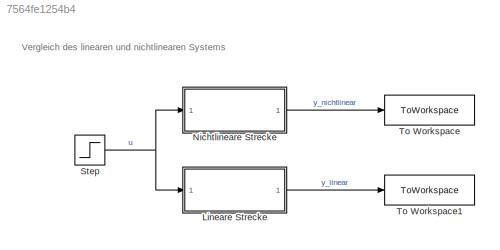
MODEL slx_7564fe1254b4
KIND model
CONFIG AbsTol = auto
CONFIG EnableMultiTasking = off
CONFIG FixedStep = 1/1e4
CONFIG MaxStep = auto
CONFIG MinStep = auto
CONFIG RelTol = 1e-3
CONFIG SampleTimeConstraint = Unconstrained
CONFIG SolverName = FixedStepAuto
CONFIG StartTime = 0.0
CONFIG StopTime = 30
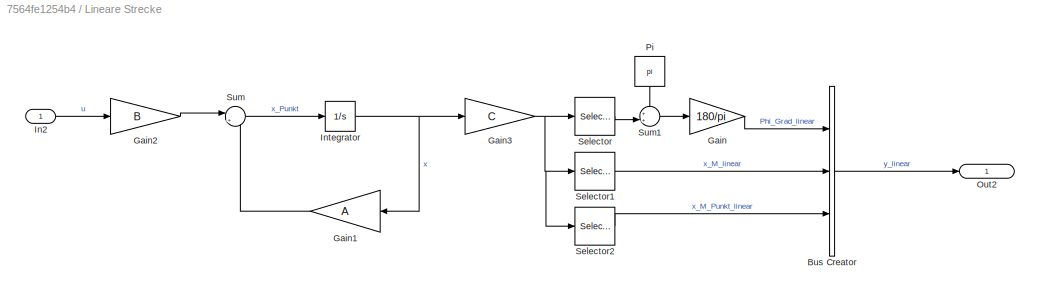
BLOCK [SubSystem] Lineare Strecke
  Ports = [1, 1]
  RequestExecContextInheritance = off
BLOCK [BusCreator] Lineare Strecke/Bus Creator
  DisplayOption = bar
  InheritFromInputs = on
  Inputs = 3
  Ports = [3, 1]
BLOCK [Gain] Lineare Strecke/Gain
  Gain = 180/pi
BLOCK [Gain] Lineare Strecke/Gain1
  Gain = A
  Multiplication = Matrix(K*u) (u vector)
  NameLocation = top
BLOCK [Gain] Lineare Strecke/Gain2
  Gain = B
  Multiplication = Matrix(K*u) (u vector)
BLOCK [Gain] Lineare Strecke/Gain3
  Gain = C
  Multiplication = Matrix(K*u) (u vector)
BLOCK [Inport] Lineare Strecke/In2
  IconDisplay = Signal name
BLOCK [Integrator] Lineare Strecke/Integrator
  Ports = [1, 1]
BLOCK [Outport] Lineare Strecke/Out2
  IconDisplay = Signal name
BLOCK [Constant] Lineare Strecke/Pi
  NameLocation = left
  OutDataTypeStr = Inherit: Inherit via back propagation
  Value = pi
BLOCK [Selector] Lineare Strecke/Selector
  IndexOptions = Index vector (dialog)
  Indices = 1
  InputPortWidth = 3
  OutputSizes = 1
  Ports = [1, 1]
BLOCK [Selector] Lineare Strecke/Selector1
  IndexOptions = Index vector (dialog)
  Indices = 2
  InputPortWidth = 3
  OutputSizes = 1
  Ports = [1, 1]
BLOCK [Selector] Lineare Strecke/Selector2
  IndexOptions = Index vector (dialog)
  Indices = 3
  InputPortWidth = 3
  OutputSizes = 1
  Ports = [1, 1]
BLOCK [Sum] Lineare Strecke/Sum
  Inputs = |++
  Ports = [2, 1]
BLOCK [Sum] Lineare Strecke/Sum1
  Inputs = ++|
  Ports = [2, 1]
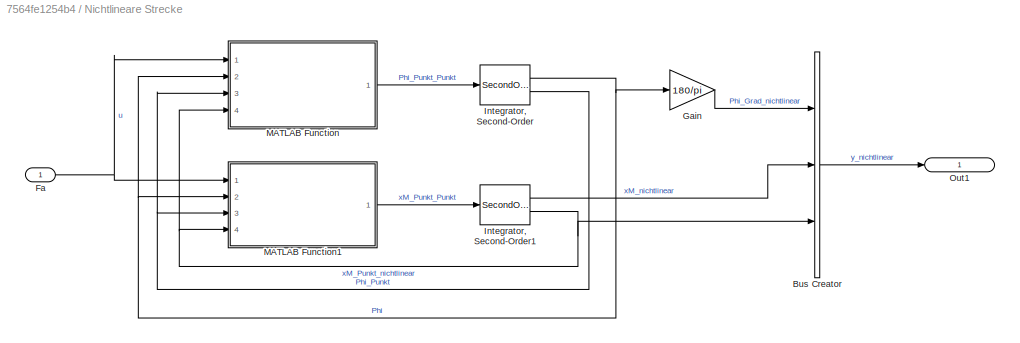
BLOCK [SubSystem] Nichtlineare Strecke
  Ports = [1, 1]
  RequestExecContextInheritance = off
BLOCK [BusCreator] Nichtlineare Strecke/Bus Creator
  DisplayOption = bar
  InheritFromInputs = on
  Inputs = 3
  Ports = [3, 1]
BLOCK [Inport] Nichtlineare Strecke/Fa
  IconDisplay = Signal name
BLOCK [Gain] Nichtlineare Strecke/Gain
  Gain = 180/pi
BLOCK [SecondOrderIntegrator] Nichtlineare Strecke/Integrator, Second-Order
  ICDXDT = x_Ruhe(2, 1)
  ICX = x_Ruhe(1, 1)
  Ports = [1, 2]
BLOCK [SecondOrderIntegrator] Nichtlineare Strecke/Integrator, Second-Order1
  ICDXDT = x_Ruhe(4, 1)
  ICX = x_Ruhe(3, 1)
  Ports = [1, 2]
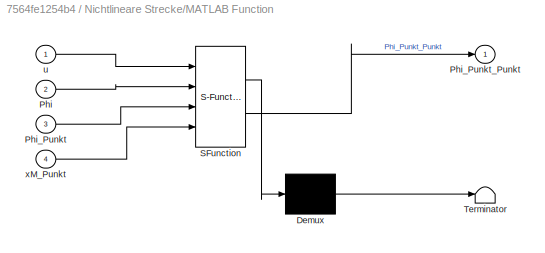
BLOCK [SubSystem] Nichtlineare Strecke/MATLAB Function
  ErrorFcn = Stateflow.Translate.translate
  PermitHierarchicalResolution = ExplicitOnly
  Ports = [4, 1]
  RequestExecContextInheritance = off
  SFBlockType = MATLAB Function
  TreatAsAtomicUnit = on
BLOCK [Demux] Nichtlineare Strecke/MATLAB Function/ Demux 
  Outputs = 1
  Ports = [1, 1]
BLOCK [S-Function] Nichtlineare Strecke/MATLAB Function/ SFunction 
  EnableBusSupport = on
  FunctionName = sf_sfun
  PortCounts = [4 2]
  Ports = [4, 2]
  SFcnIsStateOwnerBlock = off
  SFunctionDeploymentMode = off
  Tag = Stateflow S-Function 2
BLOCK [Terminator] Nichtlineare Strecke/MATLAB Function/ Terminator 
BLOCK [Inport] Nichtlineare Strecke/MATLAB Function/Phi
  Port = 2
BLOCK [Inport] Nichtlineare Strecke/MATLAB Function/Phi_Punkt
  Port = 3
BLOCK [Outport] Nichtlineare Strecke/MATLAB Function/Phi_Punkt_Punkt
BLOCK [Inport] Nichtlineare Strecke/MATLAB Function/u
BLOCK [Inport] Nichtlineare Strecke/MATLAB Function/xM_Punkt
  Port = 4
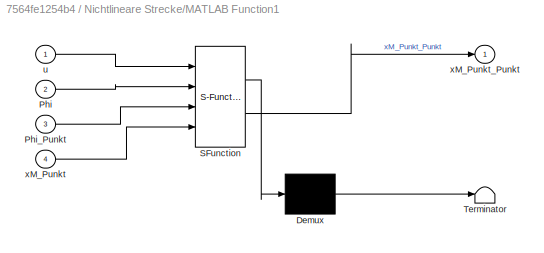
BLOCK [SubSystem] Nichtlineare Strecke/MATLAB Function1
  ErrorFcn = Stateflow.Translate.translate
  PermitHierarchicalResolution = ExplicitOnly
  Ports = [4, 1]
  RequestExecContextInheritance = off
  SFBlockType = MATLAB Function
  TreatAsAtomicUnit = on
BLOCK [Demux] Nichtlineare Strecke/MATLAB Function1/ Demux 
  Outputs = 1
  Ports = [1, 1]
BLOCK [S-Function] Nichtlineare Strecke/MATLAB Function1/ SFunction 
  EnableBusSupport = on
  FunctionName = sf_sfun
  PortCounts = [4 2]
  Ports = [4, 2]
  SFcnIsStateOwnerBlock = off
  SFunctionDeploymentMode = off
  Tag = Stateflow S-Function 1
BLOCK [Terminator] Nichtlineare Strecke/MATLAB Function1/ Terminator 
BLOCK [Inport] Nichtlineare Strecke/MATLAB Function1/Phi
  Port = 2
BLOCK [Inport] Nichtlineare Strecke/MATLAB Function1/Phi_Punkt
  Port = 3
BLOCK [Inport] Nichtlineare Strecke/MATLAB Function1/u
BLOCK [Inport] Nichtlineare Strecke/MATLAB Function1/xM_Punkt
  Port = 4
BLOCK [Outport] Nichtlineare Strecke/MATLAB Function1/xM_Punkt_Punkt
BLOCK [Outport] Nichtlineare Strecke/Out1
  IconDisplay = Signal name
BLOCK [Step] Step
  After = 30
  SampleTime = 0
  Time = 0.5
BLOCK [ToWorkspace] To Workspace
  FixptAsFi = on
  MaxDataPoints = inf
  Ports = [1]
  SampleTime = -1
  SaveFormat = Timeseries
  VariableName = y_nichtlinear
BLOCK [ToWorkspace] To Workspace1
  FixptAsFi = on
  MaxDataPoints = inf
  Ports = [1]
  SampleTime = -1
  SaveFormat = Timeseries
  VariableName = y_linear
ANNOTATION (root): Vergleich des linearen und nichtlinearen Systems
LINE Lineare Strecke/Bus Creator:1 -> Lineare Strecke/Out2:1
LINE Lineare Strecke/Gain1:1 -> Lineare Strecke/Sum:2
LINE Lineare Strecke/Gain2:1 -> Lineare Strecke/Sum:1
NET Lineare Strecke/Gain3:1 -> Lineare Strecke/Selector1:1, Lineare Strecke/Selector2:1, Lineare Strecke/Selector:1
LINE Lineare Strecke/Gain:1 -> Lineare Strecke/Bus Creator:1
LINE Lineare Strecke/In2:1 -> Lineare Strecke/Gain2:1
NET Lineare Strecke/Integrator:1 -> Lineare Strecke/Gain1:1, Lineare Strecke/Gain3:1
LINE Lineare Strecke/Pi:1 -> Lineare Strecke/Sum1:1
LINE Lineare Strecke/Selector1:1 -> Lineare Strecke/Bus Creator:2
LINE Lineare Strecke/Selector2:1 -> Lineare Strecke/Bus Creator:3
LINE Lineare Strecke/Selector:1 -> Lineare Strecke/Sum1:2
LINE Lineare Strecke/Sum1:1 -> Lineare Strecke/Gain:1
LINE Lineare Strecke/Sum:1 -> Lineare Strecke/Integrator:1
LINE Lineare Strecke:1 -> To Workspace1:1
LINE Nichtlineare Strecke/Bus Creator:1 -> Nichtlineare Strecke/Out1:1
NET Nichtlineare Strecke/Fa:1 -> Nichtlineare Strecke/MATLAB Function1:1, Nichtlineare Strecke/MATLAB Function:1
LINE Nichtlineare Strecke/Gain:1 -> Nichtlineare Strecke/Bus Creator:1
LINE Nichtlineare Strecke/Integrator, Second-Order1:1 -> Nichtlineare Strecke/Bus Creator:2
NET Nichtlineare Strecke/Integrator, Second-Order1:2 -> Nichtlineare Strecke/Bus Creator:3, Nichtlineare Strecke/MATLAB Function1:4, Nichtlineare Strecke/MATLAB Function:4
NET Nichtlineare Strecke/Integrator, Second-Order:1 -> Nichtlineare Strecke/Gain:1, Nichtlineare Strecke/MATLAB Function1:2, Nichtlineare Strecke/MATLAB Function:2
NET Nichtlineare Strecke/Integrator, Second-Order:2 -> Nichtlineare Strecke/MATLAB Function1:3, Nichtlineare Strecke/MATLAB Function:3
LINE Nichtlineare Strecke/MATLAB Function1:1 -> Nichtlineare Strecke/Integrator, Second-Order1:1
LINE Nichtlineare Strecke/MATLAB Function:1 -> Nichtlineare Strecke/Integrator, Second-Order:1
LINE Nichtlineare Strecke:1 -> To Workspace:1
NET Step:1 -> Lineare Strecke:1, Nichtlineare Strecke:1
note: NET lines group one-source signal fan-out (src -> all destinations, sorted); 1:1 wires keep LINE
CHART Nichtlineare Strecke/MATLAB Function1 states=1 transitions=1
  STATE_LABEL 'eML_blk_kernel()'
  STATE_LABEL 'SCRIPT:\nfunction xM_Punkt_Punkt = fcn(u, Phi, Phi_Punkt, xM_Punkt)\n    % Konstanten\n    c = Konstanten();\n\n    % Berechnung\n    xM_Punkt_Punkt = (c.g*tan(Phi)+1/(c.m*cos(Phi)^2)*(c.d*xM_Punkt-u)-(c.l*Phi_Punkt^2*tan(Phi))/cos(Phi)-(c.d_Mf*Phi_Punkt)/(c.m*c.l*cos(Phi)))/(1-(c.M+c.m)/(c.m*cos(Phi)^2));'
CHART Nichtlineare Strecke/MATLAB Function states=1 transitions=1
  STATE_LABEL 'eML_blk_kernel()'
  STATE_LABEL 'SCRIPT:\nfunction Phi_Punkt_Punkt = fcn(u, Phi, Phi_Punkt, xM_Punkt)\n    % Konstanten\n    c = Konstanten();\n\n    % Berechnung\n    Phi_Punkt_Punkt = ((u-c.g*tan(Phi)*(c.M+c.m)-c.d*xM_Punkt)/(c.m*c.l*cos(Phi))+c.d_Mf*Phi_Punkt*(c.M/(c.m^2*c.l^2*cos(Phi)^2)+1/(c.m*c.l^2*cos(Phi)^2))+Phi_Punkt^2*tan(Phi))/(1-(1/cos(Phi)^2)-c.M/(c.m*cos(Phi)^2));    '
CHART  states=0 transitions=0
CHART  states=0 transitions=0
